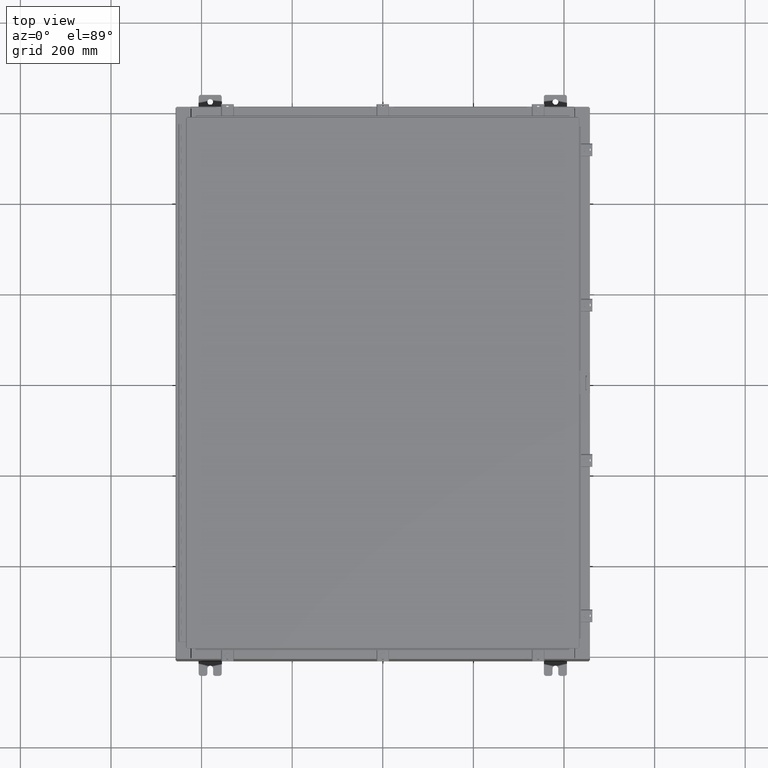
[diagram: clean part render]
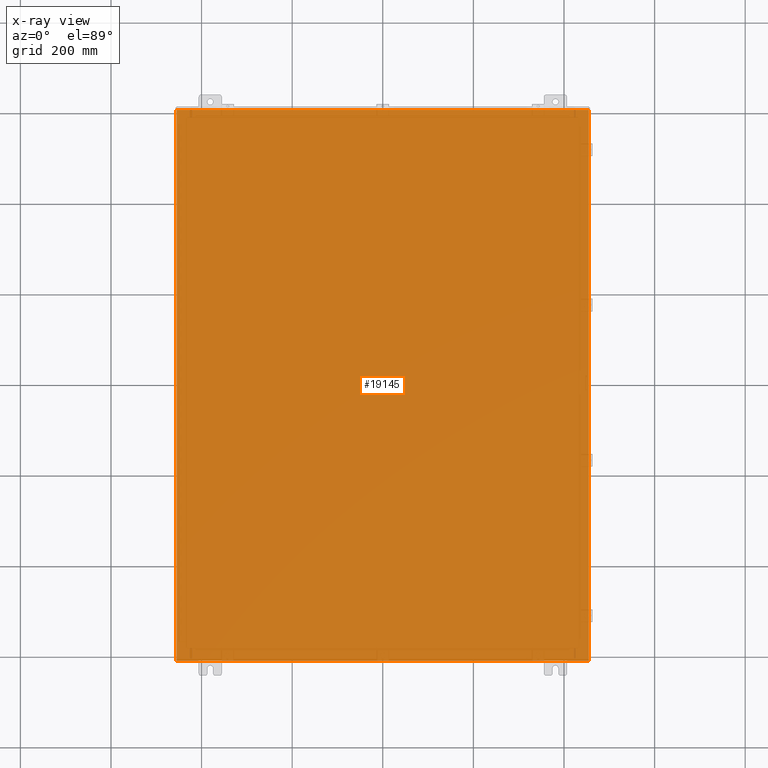
[diagram: x-ray — body ghosted, one internal face saturated and labeled with its STEP entity id]
A machine part, top view, then the same camera in x-ray: the body is ghosted and one INTERNAL B-rep face — a face not visible from any outside direction — is saturated and labeled: STEP entity #19145.
In plain terms, the highlighted planar face has unit normal (0, 0, -1).
Its self-contained STEP definition (entity closure, byte-faithful):
#584 = LINE ( 'NONE', #16103, #21368 ) ;
#1077 = LINE ( 'NONE', #21017, #23133 ) ;
#1425 = CARTESIAN_POINT ( 'NONE',  ( -17.91230000000000500, 23.92529999999998900, 4.481938114605432000E-017 ) ) ;
#2651 = CARTESIAN_POINT ( 'NONE',  ( 17.91229999999999500, -23.92529999999998900, -8.238229105893793900E-016 ) ) ;
#5575 = VERTEX_POINT ( 'NONE', #48417 ) ;
#11164 = VERTEX_POINT ( 'NONE', #49319 ) ;
#13131 = EDGE_LOOP ( 'NONE', ( #31081, #41187, #40457, #25451 ) ) ;
#13469 = EDGE_CURVE ( 'NONE', #11164, #28077, #1077, .T. ) ;
#15514 = EDGE_CURVE ( 'NONE', #5575, #28077, #39027, .T. ) ;
#16103 = CARTESIAN_POINT ( 'NONE',  ( -17.91230000000000500, -23.92529999999998900, 4.481938114605432000E-017 ) ) ;
#19145 = ADVANCED_FACE ( 'NONE', ( #53644 ), #43988, .F. ) ;
#20773 = DIRECTION ( 'NONE',  ( -0.0000000000000000000, -1.000000000000000000, -8.208677865577646300E-017 ) ) ;
#21017 = CARTESIAN_POINT ( 'NONE',  ( 17.91229999999999500, 23.92529999999998900, 3.103208580302999200E-015 ) ) ;
#21368 = VECTOR ( 'NONE', #32789, 39.37007874015748100 ) ;
#23133 = VECTOR ( 'NONE', #20773, 39.37007874015748100 ) ;
#23182 = CARTESIAN_POINT ( 'NONE',  ( 0.0000000000000000000, 0.0000000000000000000, 0.0000000000000000000 ) ) ;
#24458 = EDGE_CURVE ( 'NONE', #11164, #29049, #32387, .T. ) ;
#25451 = ORIENTED_EDGE ( 'NONE', *, *, #24458, .T. ) ;
#27353 = DIRECTION ( 'NONE',  ( -1.000000000000000000, 0.0000000000000000000, -0.0000000000000000000 ) ) ;
#27883 = VECTOR ( 'NONE', #39273, 39.37007874015748100 ) ;
#28077 = VERTEX_POINT ( 'NONE', #2651 ) ;
#29049 = VERTEX_POINT ( 'NONE', #1425 ) ;
#30953 = AXIS2_PLACEMENT_3D ( 'NONE', #23182, #52411, #27353 ) ;
#31081 = ORIENTED_EDGE ( 'NONE', *, *, #47326, .F. ) ;
#32387 = LINE ( 'NONE', #45282, #53356 ) ;
#32789 = DIRECTION ( 'NONE',  ( -0.0000000000000000000, 1.000000000000000000, -0.0000000000000000000 ) ) ;
#38191 = CARTESIAN_POINT ( 'NONE',  ( -18.00000000000000400, -23.92530000000000400, 0.0000000000000000000 ) ) ;
#39027 = LINE ( 'NONE', #38191, #27883 ) ;
#39273 = DIRECTION ( 'NONE',  ( 1.000000000000000000, 1.214154663850783700E-016, 0.0000000000000000000 ) ) ;
#40457 = ORIENTED_EDGE ( 'NONE', *, *, #13469, .F. ) ;
#41187 = ORIENTED_EDGE ( 'NONE', *, *, #15514, .T. ) ;
#43988 = PLANE ( 'NONE',  #30953 ) ;
#45282 = CARTESIAN_POINT ( 'NONE',  ( -18.00000000000000400, 23.92530000000000000, 0.0000000000000000000 ) ) ;
#47326 = EDGE_CURVE ( 'NONE', #5575, #29049, #584, .T. ) ;
#48417 = CARTESIAN_POINT ( 'NONE',  ( -17.91230000000000500, -23.92529999999998600, 4.481938114605432000E-017 ) ) ;
#49319 = CARTESIAN_POINT ( 'NONE',  ( 17.91229999999999500, 23.92529999999998600, 3.103208580302999200E-015 ) ) ;
#52411 = DIRECTION ( 'NONE',  ( 0.0000000000000000000, 0.0000000000000000000, -1.000000000000000000 ) ) ;
#53356 = VECTOR ( 'NONE', #53667, 39.37007874015748100 ) ;
#53644 = FACE_OUTER_BOUND ( 'NONE', #13131, .T. ) ;
#53667 = DIRECTION ( 'NONE',  ( -1.000000000000000000, -0.0000000000000000000, -0.0000000000000000000 ) ) ;